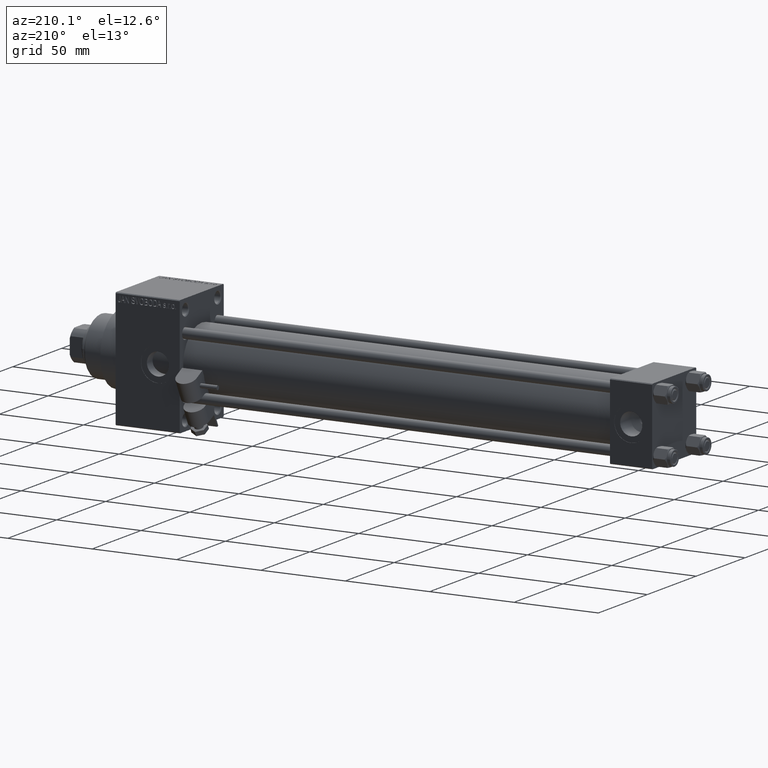
[diagram: clean part render]
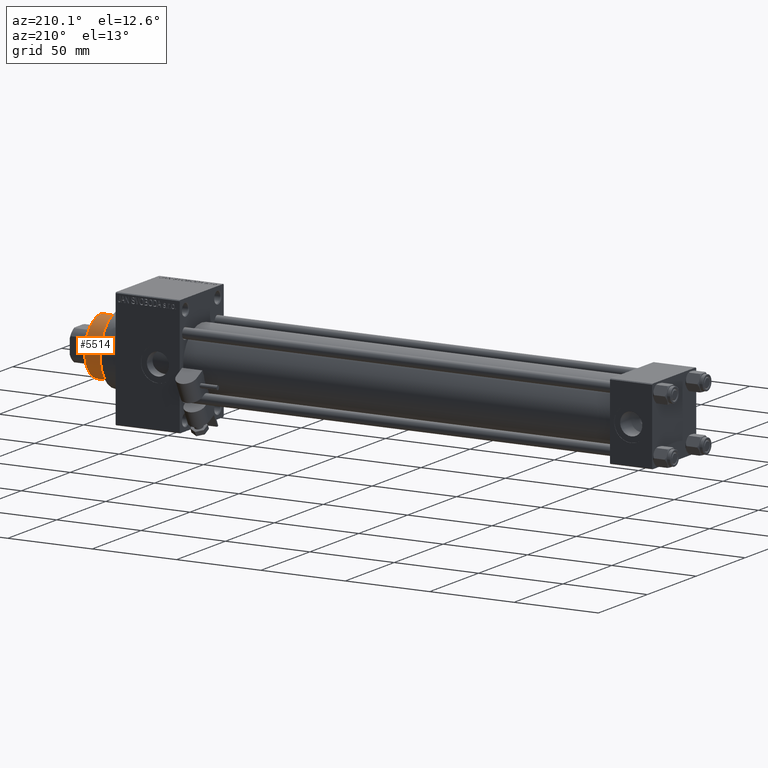
[diagram: same view with one face highlighted and labeled with its STEP entity id]
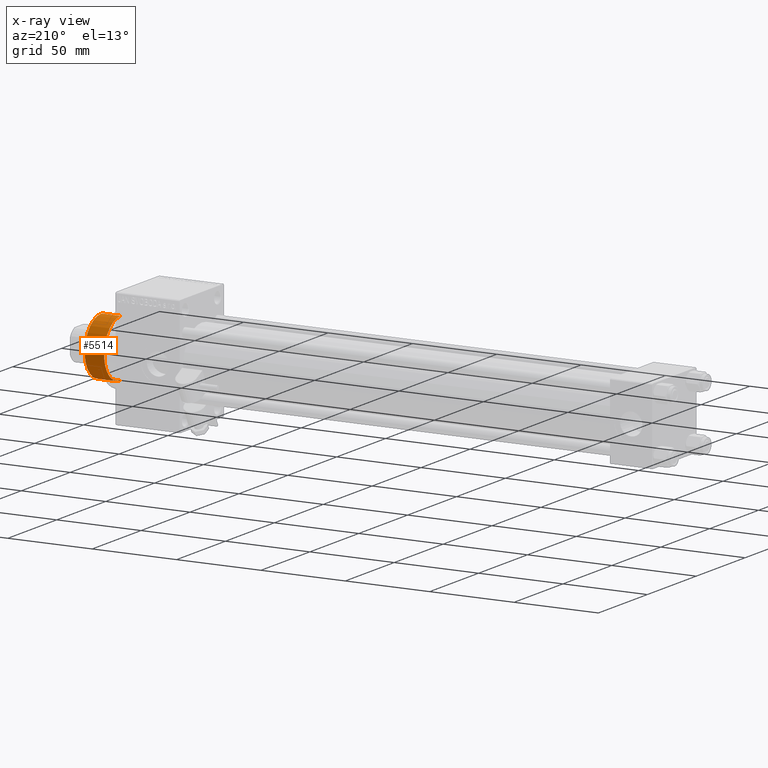
[diagram: x-ray of the same camera — body ghosted, the highlighted face saturated]
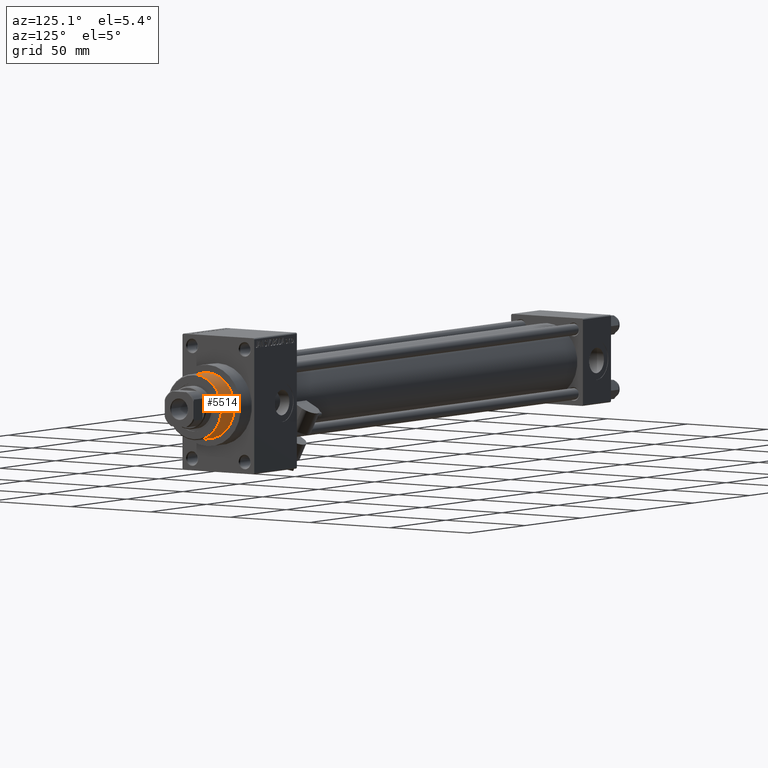
[diagram: same view with one face highlighted and labeled with its STEP entity id]
A machine part, auxiliary view. The second image highlights one B-rep face of the part: STEP entity #5514.
The next image is the same camera in x-ray: the body ghosted, the highlighted face saturated — about 0% of this face is hidden behind the body in this view.
A second angle (auxiliary view) of the same face is appended — the face is thin or edge-on in the first view.
In plain terms, the highlighted cylindrical surface (edge-blend (fillet) strip) has radius 17 mm, axis along (-1, 0, 0).
Its self-contained STEP definition (entity closure, byte-faithful):
#476 = AXIS2_PLACEMENT_3D ( 'NONE', #17538, #40316, #1335 ) ;
#1335 = DIRECTION ( 'NONE',  ( 1.000000000000000000, 0.000000000000000000, 0.000000000000000000 ) ) ;
#3446 = CYLINDRICAL_SURFACE ( 'NONE', #42086, 17.00000000000000000 ) ;
#4319 = ORIENTED_EDGE ( 'NONE', *, *, #10920, .T. ) ;
#5514 = ADVANCED_FACE ( 'NONE', ( #35078 ), #3446, .T. ) ;
#5785 = DIRECTION ( 'NONE',  ( -0.000000000000000000, -0.000000000000000000, -1.000000000000000000 ) ) ;
#7859 = CARTESIAN_POINT ( 'NONE',  ( 17.00000000000000000, 2.081899558550500280E-15, 55.26000000000000512 ) ) ;
#10638 = AXIS2_PLACEMENT_3D ( 'NONE', #22697, #46228, #22953 ) ;
#10920 = EDGE_CURVE ( 'NONE', #39652, #18195, #22777, .T. ) ;
#11174 = ORIENTED_EDGE ( 'NONE', *, *, #24520, .T. ) ;
#11808 = DIRECTION ( 'NONE',  ( -1.000000000000000000, 0.000000000000000000, 0.000000000000000000 ) ) ;
#17538 = CARTESIAN_POINT ( 'NONE',  ( 0.000000000000000000, 0.000000000000000000, 43.25999999999999801 ) ) ;
#17829 = VERTEX_POINT ( 'NONE', #42640 ) ;
#18195 = VERTEX_POINT ( 'NONE', #19307 ) ;
#19307 = CARTESIAN_POINT ( 'NONE',  ( -17.00000000000000000, 0.000000000000000000, 54.76000000000001222 ) ) ;
#19428 = VECTOR ( 'NONE', #47077, 1000.000000000000000 ) ;
#21500 = CARTESIAN_POINT ( 'NONE',  ( -17.00000000000000000, 0.000000000000000000, 55.26000000000000512 ) ) ;
#22342 = CIRCLE ( 'NONE', #476, 17.00000000000000000 ) ;
#22697 = CARTESIAN_POINT ( 'NONE',  ( 0.000000000000000000, 0.000000000000000000, 54.76000000000001222 ) ) ;
#22777 = CIRCLE ( 'NONE', #10638, 17.00000000000000000 ) ;
#22953 = DIRECTION ( 'NONE',  ( 1.000000000000000000, 0.000000000000000000, 0.000000000000000000 ) ) ;
#24520 = EDGE_CURVE ( 'NONE', #17829, #43007, #22342, .T. ) ;
#26494 = DIRECTION ( 'NONE',  ( -0.000000000000000000, -0.000000000000000000, -1.000000000000000000 ) ) ;
#26778 = CARTESIAN_POINT ( 'NONE',  ( 17.00000000000000000, 2.081899558550500280E-15, 43.25999999999999801 ) ) ;
#31086 = EDGE_CURVE ( 'NONE', #18195, #17829, #45021, .T. ) ;
#34922 = LINE ( 'NONE', #7859, #19428 ) ;
#35078 = FACE_OUTER_BOUND ( 'NONE', #46739, .T. ) ;
#39092 = ORIENTED_EDGE ( 'NONE', *, *, #39892, .F. ) ;
#39652 = VERTEX_POINT ( 'NONE', #40628 ) ;
#39892 = EDGE_CURVE ( 'NONE', #39652, #43007, #34922, .T. ) ;
#40316 = DIRECTION ( 'NONE',  ( 0.000000000000000000, 0.000000000000000000, 1.000000000000000000 ) ) ;
#40628 = CARTESIAN_POINT ( 'NONE',  ( 17.00000000000000000, 2.081899558550500280E-15, 54.76000000000001222 ) ) ;
#42086 = AXIS2_PLACEMENT_3D ( 'NONE', #46981, #26494, #11808 ) ;
#42640 = CARTESIAN_POINT ( 'NONE',  ( -17.00000000000000000, 0.000000000000000000, 43.25999999999999801 ) ) ;
#43007 = VERTEX_POINT ( 'NONE', #26778 ) ;
#45021 = LINE ( 'NONE', #21500, #46825 ) ;
#46228 = DIRECTION ( 'NONE',  ( 0.000000000000000000, 0.000000000000000000, -1.000000000000000000 ) ) ;
#46739 = EDGE_LOOP ( 'NONE', ( #39092, #4319, #48433, #11174 ) ) ;
#46825 = VECTOR ( 'NONE', #5785, 1000.000000000000000 ) ;
#46981 = CARTESIAN_POINT ( 'NONE',  ( 0.000000000000000000, 0.000000000000000000, 55.26000000000000512 ) ) ;
#47077 = DIRECTION ( 'NONE',  ( -0.000000000000000000, -0.000000000000000000, -1.000000000000000000 ) ) ;
#48433 = ORIENTED_EDGE ( 'NONE', *, *, #31086, .T. ) ;